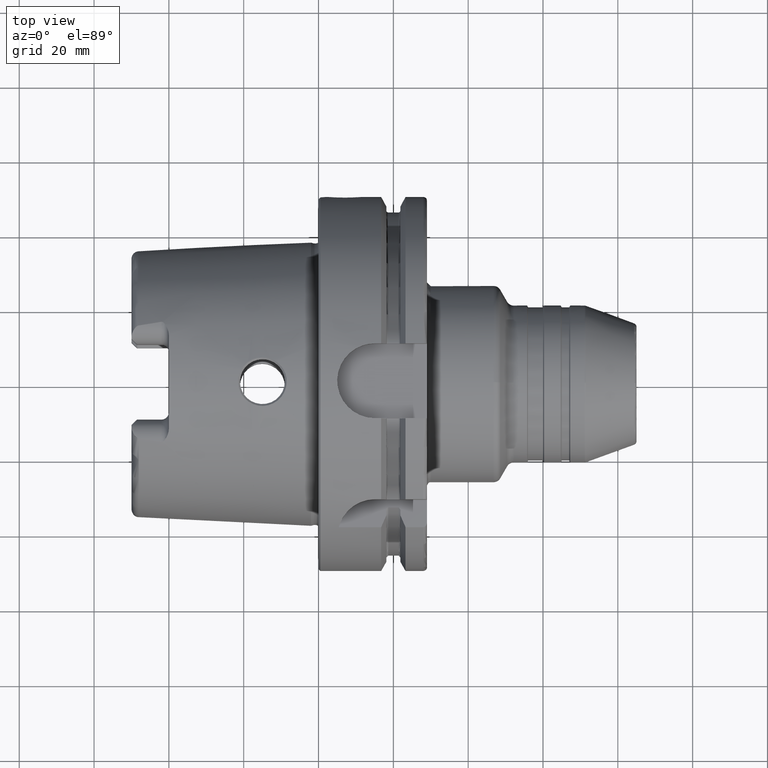
[diagram: clean part render]
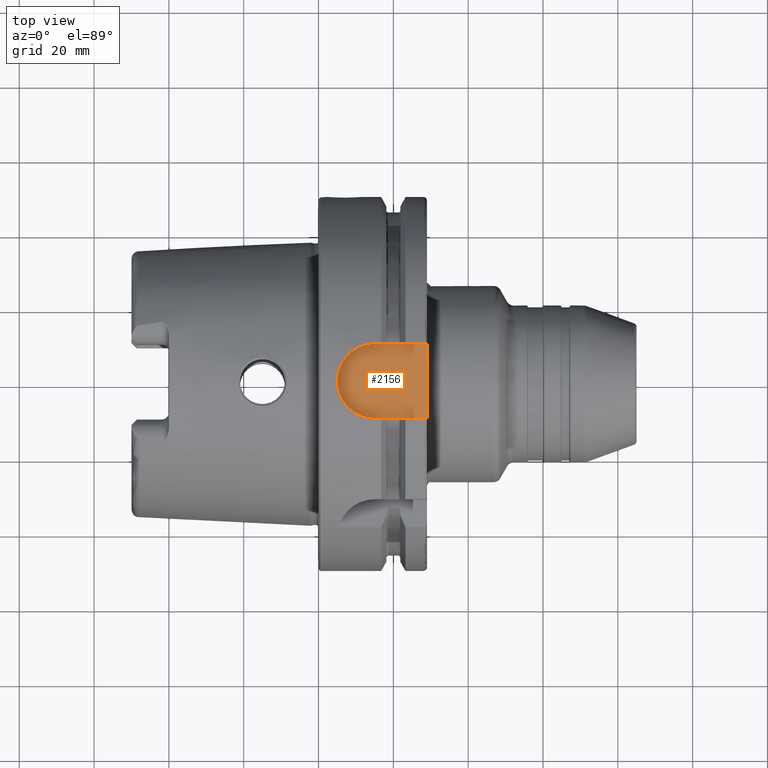
[diagram: same view with one face highlighted and labeled with its STEP entity id]
A machine part, top view. The second image highlights one B-rep face of the part: STEP entity #2156.
In plain terms, the highlighted planar face has unit normal (0, 0, 1).
Its self-contained STEP definition (entity closure, byte-faithful):
#129=PLANE('',#2409);
#268=FACE_OUTER_BOUND('',#401,.T.);
#401=EDGE_LOOP('',(#1824,#1825,#1826,#1827));
#461=LINE('',#3241,#572);
#540=LINE('',#4523,#651);
#543=LINE('',#4530,#654);
#572=VECTOR('',#2576,10.);
#651=VECTOR('',#2955,10.);
#654=VECTOR('',#2964,10.);
#771=CIRCLE('',#2407,10.);
#844=VERTEX_POINT('',#3238);
#845=VERTEX_POINT('',#3240);
#1002=VERTEX_POINT('',#4522);
#1003=VERTEX_POINT('',#4526);
#1066=EDGE_CURVE('',#844,#845,#461,.T.);
#1292=EDGE_CURVE('',#1002,#845,#540,.T.);
#1294=EDGE_CURVE('',#1003,#1002,#771,.T.);
#1296=EDGE_CURVE('',#844,#1003,#543,.T.);
#1824=ORIENTED_EDGE('',*,*,#1296,.T.);
#1825=ORIENTED_EDGE('',*,*,#1294,.T.);
#1826=ORIENTED_EDGE('',*,*,#1292,.T.);
#1827=ORIENTED_EDGE('',*,*,#1066,.F.);
#2156=ADVANCED_FACE('',(#268),#129,.T.);
#2407=AXIS2_PLACEMENT_3D('',#4527,#2959,#2960);
#2409=AXIS2_PLACEMENT_3D('',#4531,#2965,#2966);
#2576=DIRECTION('',(0.,-1.,0.));
#2955=DIRECTION('',(1.,7.93016446160826E-17,0.));
#2959=DIRECTION('center_axis',(0.,0.,1.));
#2960=DIRECTION('ref_axis',(0.,1.,0.));
#2964=DIRECTION('',(-1.,0.,0.));
#2965=DIRECTION('center_axis',(0.,0.,1.));
#2966=DIRECTION('ref_axis',(1.,0.,0.));
#3238=CARTESIAN_POINT('',(29.,10.,44.));
#3240=CARTESIAN_POINT('',(29.,-10.,44.));
#3241=CARTESIAN_POINT('',(29.,0.,44.));
#4522=CARTESIAN_POINT('',(15.,-10.,44.));
#4523=CARTESIAN_POINT('',(15.,-10.,44.));
#4526=CARTESIAN_POINT('',(15.,10.,44.));
#4527=CARTESIAN_POINT('Origin',(15.,0.,44.));
#4530=CARTESIAN_POINT('',(29.,10.,44.));
#4531=CARTESIAN_POINT('Origin',(17.,0.,44.));